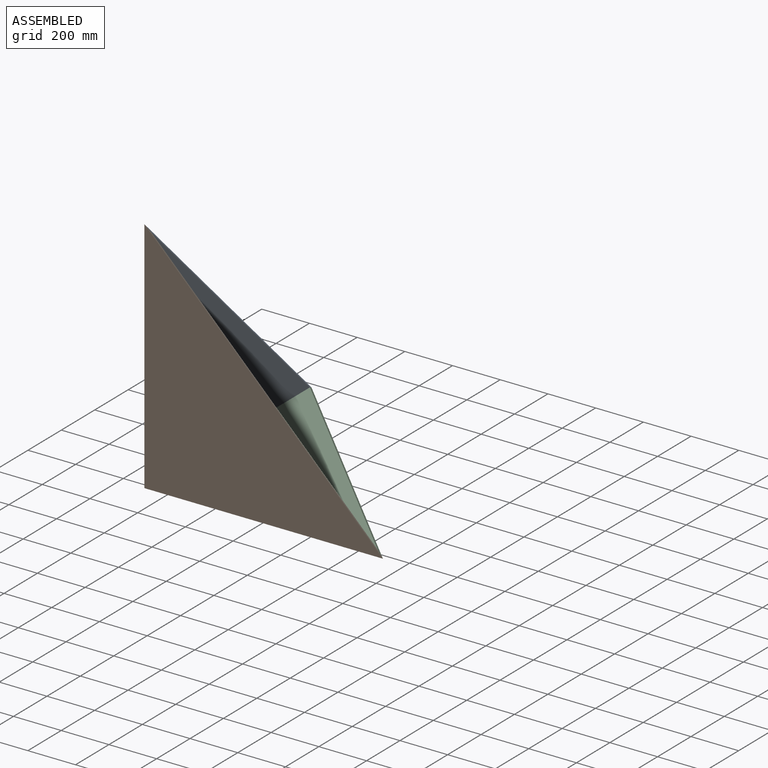
[diagram: assembled view]
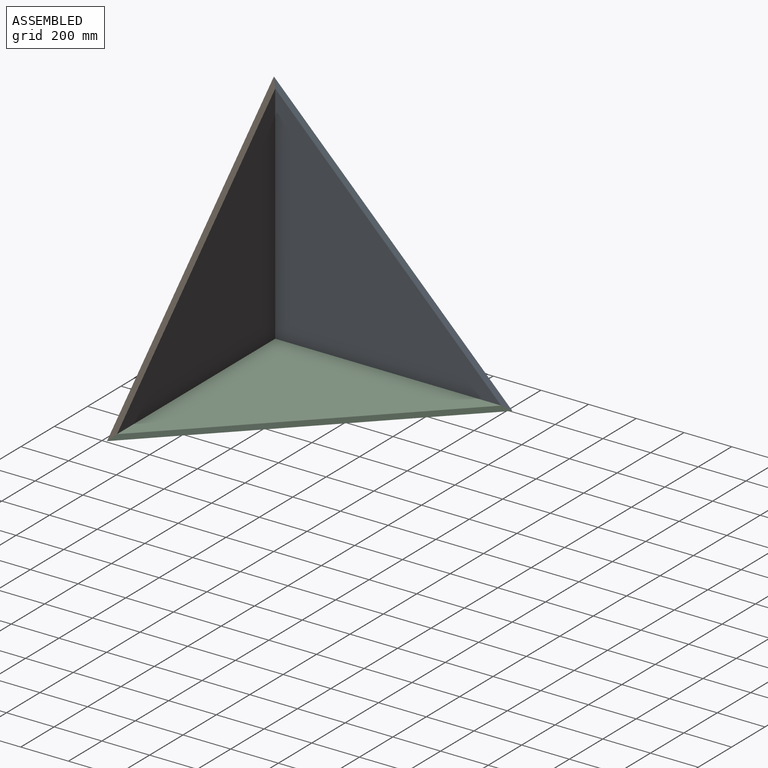
[diagram: assembled view, second angle]
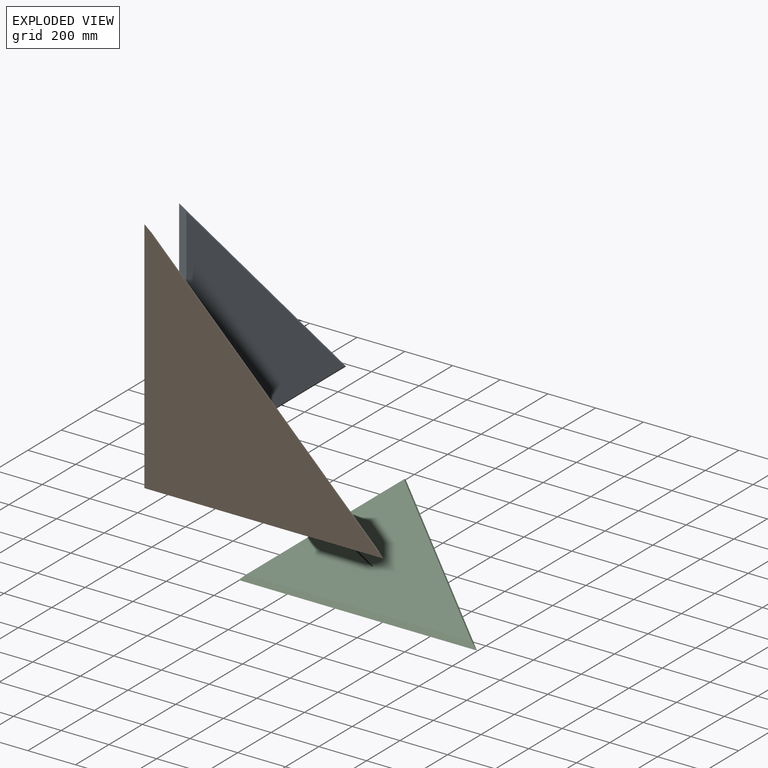
[diagram: exploded view]
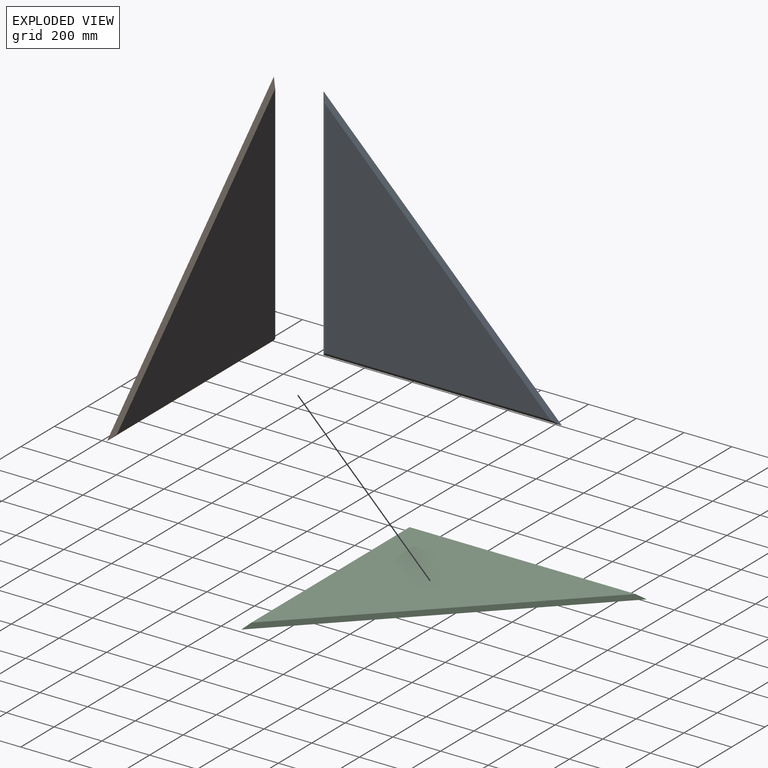
[diagram: exploded view, second angle]
ASSEMBLY  parts=3 mates=2
PART A: 5 faces, bbox 1000x1000x18 mm
  f0: plane 947.47x947.47mm, normal (0,0,1), area 448848.5mm2, adj f2,f3,f4
  f1: plane 1000x1000mm, normal (0,0,-1), area 500000mm2, adj f2,f3,f4
  f2: plane 1000x18mm, normal (0,-0.71,0.71), area 24787.2mm2, adj f0,f1,f3,f4
  f3: plane 1000x18mm, normal (-0.71,0,0.71), area 24787.2mm2, adj f0,f1,f2,f4
  f4: plane 1000x1000mm, normal (0.59,0.59,0.54), area 29555.4mm2, adj f0,f1,f2,f3
PART B: same geometry as A
PART C: same geometry as A
PLACE A rot(axis=(0.58,0.58,0.58),120deg) t=(1429.53,341.79,489.25)mm
PLACE B rot(axis=(-0.58,-0.58,-0.58),120deg) t=(1429.53,341.79,489.25)mm
PLACE C t=(1429.53,341.79,489.25)mm
MATE planar A.f3 <-> B.f2  axis (0.71,-0.71,0) through (1438.44,350.71,985.15)mm
MATE planar B.f3 <-> C.f2  axis (0,0.71,-0.71) through (1925.43,350.71,498.17)mm
